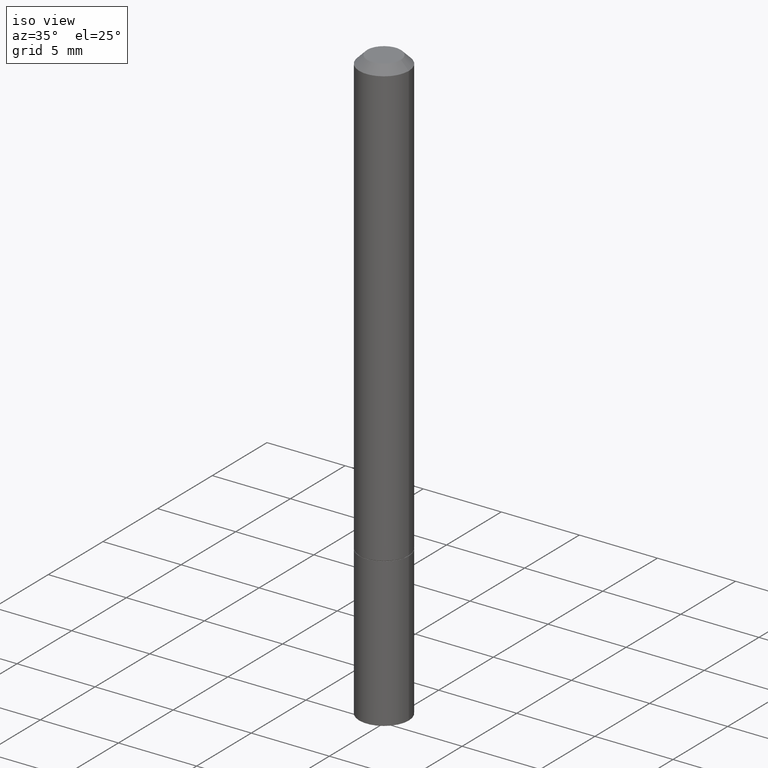
[diagram: clean part render]
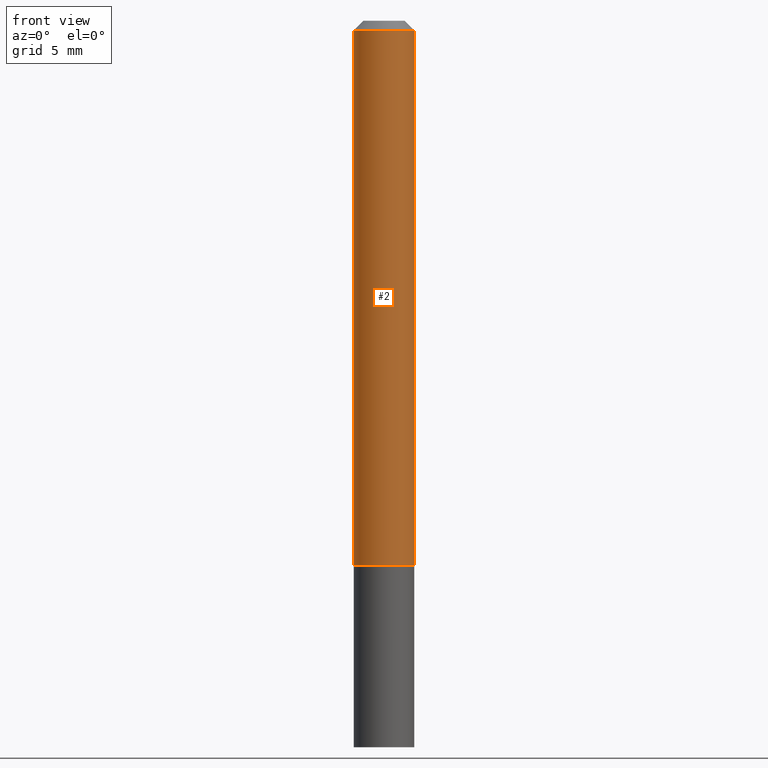
[diagram: tour spotlight — one face highlighted and labeled with its STEP entity id]
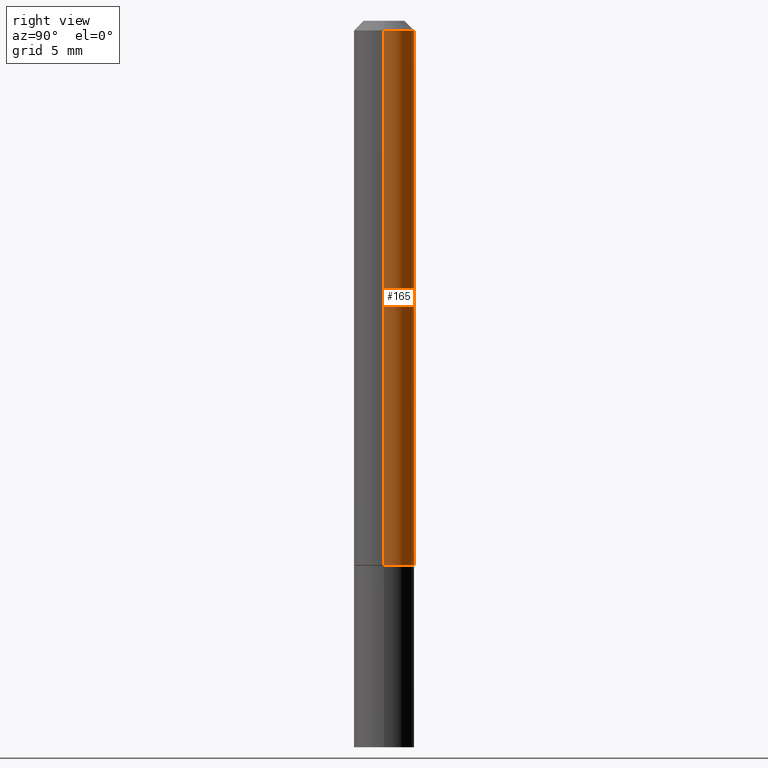
[diagram: tour spotlight — one face highlighted and labeled with its STEP entity id]
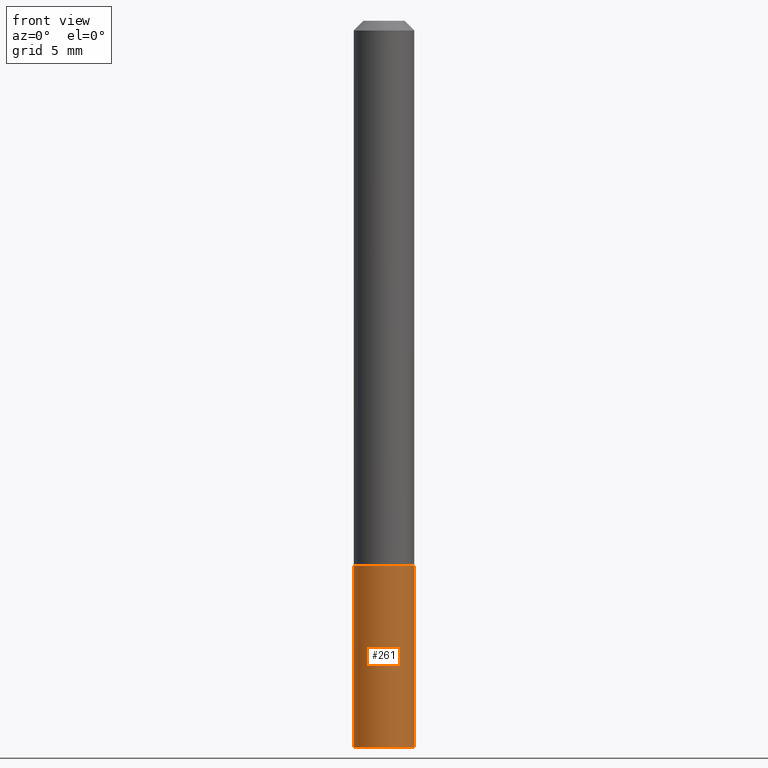
[diagram: tour spotlight — one face highlighted and labeled with its STEP entity id]
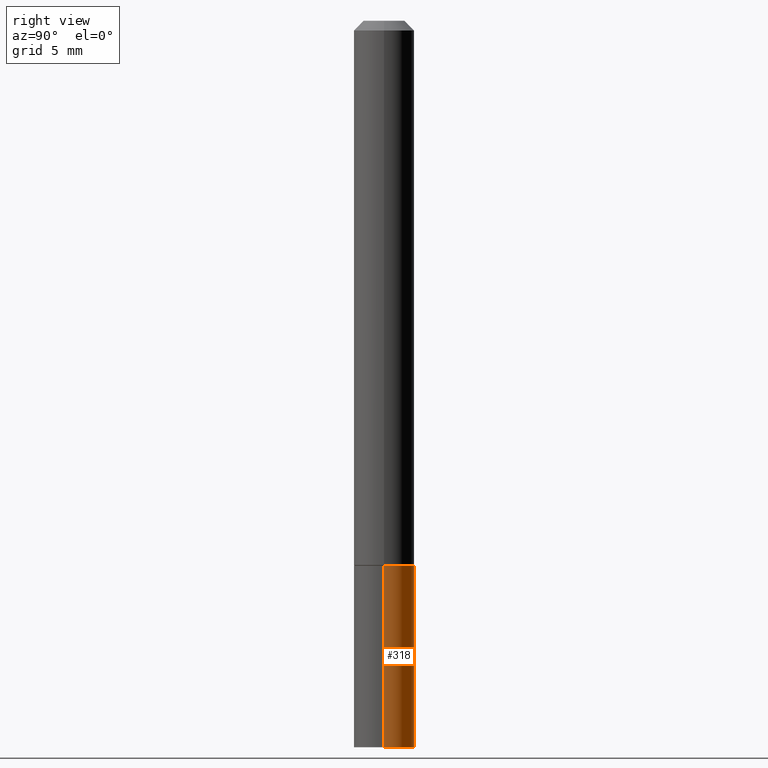
[diagram: tour spotlight — one face highlighted and labeled with its STEP entity id]
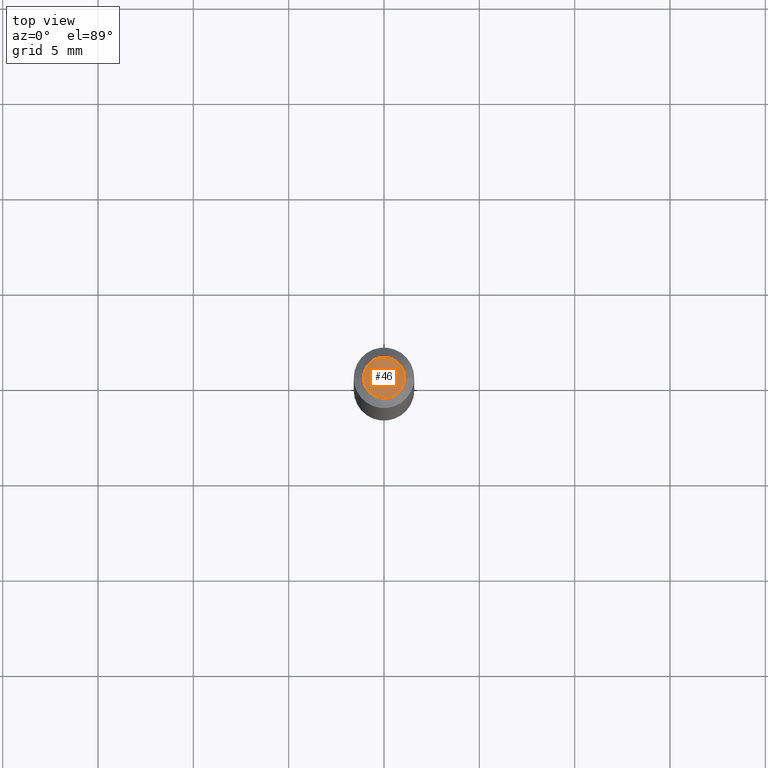
[diagram: tour spotlight — one face highlighted and labeled with its STEP entity id]
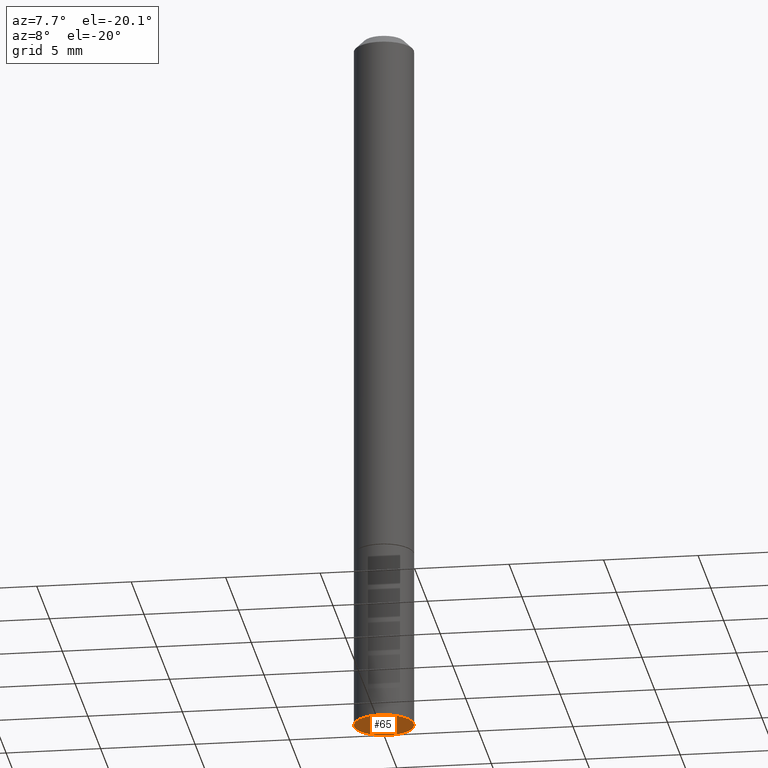
[diagram: tour spotlight — one face highlighted and labeled with its STEP entity id]
A machine part: a face-by-face anatomy tour. The part has 12 B-rep faces; the first image is the clean iso view, then the 6 largest visible faces are spotlighted one at a time (largest first), each with its STEP entity span.

Face 1 — front view, entity #2. In plain terms, the highlighted cylindrical surface (edge-blend (fillet) strip) has radius 1.5875 mm, axis along (-0, 0, 1).
Definition (entity closure, byte-faithful):
#2 = ADVANCED_FACE ( 'NONE', ( #312 ), #80, .T. ) ;
#3 = ORIENTED_EDGE ( 'NONE', *, *, #122, .T. ) ;
#14 = DIRECTION ( 'NONE',  ( 1.000000000000000000, -6.982962677686269077E-15, 0.000000000000000000 ) ) ;
#36 = LINE ( 'NONE', #176, #358 ) ;
#37 = CARTESIAN_POINT ( 'NONE',  ( 0.06250000000000001388, -4.360860192215086309E-15, -1.123999999999999888 ) ) ;
#41 = DIRECTION ( 'NONE',  ( -2.445468806185136597E-29, 3.491481338843145583E-15, 1.000000000000000000 ) ) ;
#43 = EDGE_LOOP ( 'NONE', ( #275, #357, #3, #337 ) ) ;
#56 = CARTESIAN_POINT ( 'NONE',  ( 0.000000000000000000, 0.000000000000000000, 0.000000000000000000 ) ) ;
#69 = EDGE_CURVE ( 'NONE', #303, #181, #81, .T. ) ;
#80 = CYLINDRICAL_SURFACE ( 'NONE', #307, 0.06249999999999995143 ) ;
#81 = CIRCLE ( 'NONE', #233, 0.06250000000000001388 ) ;
#89 = CARTESIAN_POINT ( 'NONE',  ( 4.890937612370294178E-31, -6.982962677686321191E-17, -0.02000000000000008715 ) ) ;
#103 = EDGE_CURVE ( 'NONE', #245, #325, #217, .T. ) ;
#122 = EDGE_CURVE ( 'NONE', #181, #325, #342, .T. ) ;
#126 = DIRECTION ( 'NONE',  ( 1.000000000000000000, -6.982962677686266711E-15, 0.000000000000000000 ) ) ;
#128 = CARTESIAN_POINT ( 'NONE',  ( 0.06249999999999988204, -4.986107516375831334E-16, -0.02000000000000008715 ) ) ;
#142 = CARTESIAN_POINT ( 'NONE',  ( 2.748706938152093068E-29, -3.924425024859694639E-15, -1.123999999999999888 ) ) ;
#166 = DIRECTION ( 'NONE',  ( -2.445468806185136597E-29, 3.491481338843145583E-15, 1.000000000000000000 ) ) ;
#176 = CARTESIAN_POINT ( 'NONE',  ( -0.06249999999999995143, 4.440892098500622710E-16, -3.074334431409313661E-30 ) ) ;
#181 = VERTEX_POINT ( 'NONE', #37 ) ;
#217 = CIRCLE ( 'NONE', #269, 0.06249999999999988204 ) ;
#225 = DIRECTION ( 'NONE',  ( -2.445468806185136877E-29, 3.491481338843145188E-15, 1.000000000000000000 ) ) ;
#227 = DIRECTION ( 'NONE',  ( -2.445468806185136877E-29, 3.491481338843145188E-15, 1.000000000000000000 ) ) ;
#233 = AXIS2_PLACEMENT_3D ( 'NONE', #142, #263, #14 ) ;
#245 = VERTEX_POINT ( 'NONE', #258 ) ;
#253 = DIRECTION ( 'NONE',  ( 1.000000000000000000, -6.982962677686266711E-15, 4.876176775795935793E-29 ) ) ;
#257 = CARTESIAN_POINT ( 'NONE',  ( -0.06250000000000001388, -1.553038115968214380E-15, -1.123999999999999888 ) ) ;
#258 = CARTESIAN_POINT ( 'NONE',  ( -0.06249999999999988204, 3.666055405785276317E-16, -0.02000000000000008715 ) ) ;
#263 = DIRECTION ( 'NONE',  ( -2.445468806185136597E-29, 3.491481338843145583E-15, 1.000000000000000000 ) ) ;
#269 = AXIS2_PLACEMENT_3D ( 'NONE', #89, #41, #126 ) ;
#275 = ORIENTED_EDGE ( 'NONE', *, *, #343, .F. ) ;
#281 = VECTOR ( 'NONE', #225, 39.37007874015748143 ) ;
#303 = VERTEX_POINT ( 'NONE', #257 ) ;
#307 = AXIS2_PLACEMENT_3D ( 'NONE', #56, #166, #253 ) ;
#312 = FACE_OUTER_BOUND ( 'NONE', #43, .T. ) ;
#321 = CARTESIAN_POINT ( 'NONE',  ( 0.06249999999999995143, -4.364351673553913243E-16, 3.047610484872457418E-30 ) ) ;
#325 = VERTEX_POINT ( 'NONE', #128 ) ;
#337 = ORIENTED_EDGE ( 'NONE', *, *, #103, .F. ) ;
#342 = LINE ( 'NONE', #321, #281 ) ;
#343 = EDGE_CURVE ( 'NONE', #303, #245, #36, .T. ) ;
#357 = ORIENTED_EDGE ( 'NONE', *, *, #69, .T. ) ;
#358 = VECTOR ( 'NONE', #227, 39.37007874015748143 ) ;

Face 2 — right view, entity #165. In plain terms, the highlighted cylindrical surface (edge-blend (fillet) strip) has radius 1.5875 mm, axis along (-0, 0, 1).
Definition (entity closure, byte-faithful):
#10 = AXIS2_PLACEMENT_3D ( 'NONE', #187, #158, #134 ) ;
#16 = DIRECTION ( 'NONE',  ( -2.445468806185136597E-29, 3.491481338843145583E-15, 1.000000000000000000 ) ) ;
#19 = EDGE_CURVE ( 'NONE', #325, #245, #360, .T. ) ;
#36 = LINE ( 'NONE', #176, #358 ) ;
#37 = CARTESIAN_POINT ( 'NONE',  ( 0.06250000000000001388, -4.360860192215086309E-15, -1.123999999999999888 ) ) ;
#39 = CARTESIAN_POINT ( 'NONE',  ( 0.000000000000000000, 0.000000000000000000, 0.000000000000000000 ) ) ;
#47 = EDGE_LOOP ( 'NONE', ( #106, #113, #73, #102 ) ) ;
#52 = CIRCLE ( 'NONE', #289, 0.06250000000000001388 ) ;
#59 = CYLINDRICAL_SURFACE ( 'NONE', #301, 0.06249999999999995143 ) ;
#66 = DIRECTION ( 'NONE',  ( -2.445468806185136597E-29, 3.491481338843145583E-15, 1.000000000000000000 ) ) ;
#73 = ORIENTED_EDGE ( 'NONE', *, *, #19, .F. ) ;
#102 = ORIENTED_EDGE ( 'NONE', *, *, #122, .F. ) ;
#106 = ORIENTED_EDGE ( 'NONE', *, *, #136, .T. ) ;
#113 = ORIENTED_EDGE ( 'NONE', *, *, #343, .T. ) ;
#122 = EDGE_CURVE ( 'NONE', #181, #325, #342, .T. ) ;
#128 = CARTESIAN_POINT ( 'NONE',  ( 0.06249999999999988204, -4.986107516375831334E-16, -0.02000000000000008715 ) ) ;
#134 = DIRECTION ( 'NONE',  ( 1.000000000000000000, -6.982962677686266711E-15, 0.000000000000000000 ) ) ;
#136 = EDGE_CURVE ( 'NONE', #181, #303, #52, .T. ) ;
#150 = DIRECTION ( 'NONE',  ( 1.000000000000000000, -6.982962677686269077E-15, 0.000000000000000000 ) ) ;
#158 = DIRECTION ( 'NONE',  ( -2.445468806185136597E-29, 3.491481338843145583E-15, 1.000000000000000000 ) ) ;
#165 = ADVANCED_FACE ( 'NONE', ( #174 ), #59, .T. ) ;
#174 = FACE_OUTER_BOUND ( 'NONE', #47, .T. ) ;
#175 = DIRECTION ( 'NONE',  ( 1.000000000000000000, -6.982962677686266711E-15, 4.876176775795935793E-29 ) ) ;
#176 = CARTESIAN_POINT ( 'NONE',  ( -0.06249999999999995143, 4.440892098500622710E-16, -3.074334431409313661E-30 ) ) ;
#181 = VERTEX_POINT ( 'NONE', #37 ) ;
#187 = CARTESIAN_POINT ( 'NONE',  ( 4.890937612370294178E-31, -6.982962677686321191E-17, -0.02000000000000008715 ) ) ;
#225 = DIRECTION ( 'NONE',  ( -2.445468806185136877E-29, 3.491481338843145188E-15, 1.000000000000000000 ) ) ;
#227 = DIRECTION ( 'NONE',  ( -2.445468806185136877E-29, 3.491481338843145188E-15, 1.000000000000000000 ) ) ;
#245 = VERTEX_POINT ( 'NONE', #258 ) ;
#257 = CARTESIAN_POINT ( 'NONE',  ( -0.06250000000000001388, -1.553038115968214380E-15, -1.123999999999999888 ) ) ;
#258 = CARTESIAN_POINT ( 'NONE',  ( -0.06249999999999988204, 3.666055405785276317E-16, -0.02000000000000008715 ) ) ;
#281 = VECTOR ( 'NONE', #225, 39.37007874015748143 ) ;
#287 = CARTESIAN_POINT ( 'NONE',  ( 2.748706938152093068E-29, -3.924425024859694639E-15, -1.123999999999999888 ) ) ;
#289 = AXIS2_PLACEMENT_3D ( 'NONE', #287, #16, #150 ) ;
#301 = AXIS2_PLACEMENT_3D ( 'NONE', #39, #66, #175 ) ;
#303 = VERTEX_POINT ( 'NONE', #257 ) ;
#321 = CARTESIAN_POINT ( 'NONE',  ( 0.06249999999999995143, -4.364351673553913243E-16, 3.047610484872457418E-30 ) ) ;
#325 = VERTEX_POINT ( 'NONE', #128 ) ;
#342 = LINE ( 'NONE', #321, #281 ) ;
#343 = EDGE_CURVE ( 'NONE', #303, #245, #36, .T. ) ;
#358 = VECTOR ( 'NONE', #227, 39.37007874015748143 ) ;
#360 = CIRCLE ( 'NONE', #10, 0.06249999999999988204 ) ;

Face 3 — front view, entity #261. In plain terms, the highlighted cylindrical surface (edge-blend (fillet) strip) has radius 1.5875 mm, axis along (-0, 0, 1).
Definition (entity closure, byte-faithful):
#18 = DIRECTION ( 'NONE',  ( 1.000000000000000000, -6.982962677686269077E-15, 0.000000000000000000 ) ) ;
#28 = ORIENTED_EDGE ( 'NONE', *, *, #107, .T. ) ;
#58 = CIRCLE ( 'NONE', #95, 0.06250000000000001388 ) ;
#61 = FACE_OUTER_BOUND ( 'NONE', #196, .T. ) ;
#64 = LINE ( 'NONE', #314, #135 ) ;
#85 = DIRECTION ( 'NONE',  ( 1.000000000000000000, -6.982962677686261189E-15, 0.000000000000000000 ) ) ;
#93 = AXIS2_PLACEMENT_3D ( 'NONE', #229, #204, #85 ) ;
#95 = AXIS2_PLACEMENT_3D ( 'NONE', #127, #208, #18 ) ;
#97 = DIRECTION ( 'NONE',  ( 1.000000000000000000, -6.982962677686267499E-15, 4.876176775795935793E-29 ) ) ;
#107 = EDGE_CURVE ( 'NONE', #308, #366, #249, .T. ) ;
#127 = CARTESIAN_POINT ( 'NONE',  ( 2.751152406958278111E-29, -3.927916506198538435E-15, -1.124999999999999778 ) ) ;
#130 = AXIS2_PLACEMENT_3D ( 'NONE', #235, #352, #97 ) ;
#132 = EDGE_CURVE ( 'NONE', #308, #242, #64, .T. ) ;
#135 = VECTOR ( 'NONE', #197, 39.37007874015748143 ) ;
#139 = ORIENTED_EDGE ( 'NONE', *, *, #145, .T. ) ;
#145 = EDGE_CURVE ( 'NONE', #366, #161, #172, .T. ) ;
#148 = CYLINDRICAL_SURFACE ( 'NONE', #130, 0.06250000000000001388 ) ;
#161 = VERTEX_POINT ( 'NONE', #201 ) ;
#163 = ORIENTED_EDGE ( 'NONE', *, *, #271, .F. ) ;
#172 = LINE ( 'NONE', #231, #205 ) ;
#196 = EDGE_LOOP ( 'NONE', ( #338, #28, #139, #163 ) ) ;
#197 = DIRECTION ( 'NONE',  ( -2.445468806185136877E-29, 3.491481338843145188E-15, 1.000000000000000000 ) ) ;
#201 = CARTESIAN_POINT ( 'NONE',  ( 0.06250000000000001388, -4.364351673553930105E-15, -1.124999999999999778 ) ) ;
#203 = CARTESIAN_POINT ( 'NONE',  ( -0.06250000000000001388, -4.138480047381564901E-15, -1.124999999999999778 ) ) ;
#204 = DIRECTION ( 'NONE',  ( -2.445468806185136597E-29, 3.491481338843145583E-15, 1.000000000000000000 ) ) ;
#205 = VECTOR ( 'NONE', #349, 39.37007874015748143 ) ;
#208 = DIRECTION ( 'NONE',  ( -2.445468806185136597E-29, 3.491481338843145583E-15, 1.000000000000000000 ) ) ;
#229 = CARTESIAN_POINT ( 'NONE',  ( 3.668203209277704335E-29, -5.237222008264717388E-15, -1.499999999999999778 ) ) ;
#231 = CARTESIAN_POINT ( 'NONE',  ( 0.06250000000000001388, -4.364351673553918173E-16, 3.047610484872460571E-30 ) ) ;
#235 = CARTESIAN_POINT ( 'NONE',  ( 0.000000000000000000, 0.000000000000000000, 0.000000000000000000 ) ) ;
#242 = VERTEX_POINT ( 'NONE', #203 ) ;
#249 = CIRCLE ( 'NONE', #93, 0.06250000000000001388 ) ;
#261 = ADVANCED_FACE ( 'NONE', ( #61 ), #148, .T. ) ;
#271 = EDGE_CURVE ( 'NONE', #242, #161, #58, .T. ) ;
#308 = VERTEX_POINT ( 'NONE', #324 ) ;
#314 = CARTESIAN_POINT ( 'NONE',  ( -0.06250000000000001388, 4.440892098500627148E-16, -3.074334431409317165E-30 ) ) ;
#316 = CARTESIAN_POINT ( 'NONE',  ( 0.06250000000000001388, -5.673657175620109057E-15, -1.499999999999999778 ) ) ;
#324 = CARTESIAN_POINT ( 'NONE',  ( -0.06250000000000001388, -4.138480047381564901E-15, -1.499999999999999778 ) ) ;
#338 = ORIENTED_EDGE ( 'NONE', *, *, #132, .F. ) ;
#349 = DIRECTION ( 'NONE',  ( -2.445468806185136877E-29, 3.491481338843145188E-15, 1.000000000000000000 ) ) ;
#352 = DIRECTION ( 'NONE',  ( -2.445468806185136597E-29, 3.491481338843145583E-15, 1.000000000000000000 ) ) ;
#366 = VERTEX_POINT ( 'NONE', #316 ) ;

Face 4 — right view, entity #318. In plain terms, the highlighted cylindrical surface (edge-blend (fillet) strip) has radius 1.5875 mm, axis along (-0, 0, 1).
Definition (entity closure, byte-faithful):
#25 = CIRCLE ( 'NONE', #234, 0.06250000000000001388 ) ;
#26 = ORIENTED_EDGE ( 'NONE', *, *, #359, .F. ) ;
#33 = CYLINDRICAL_SURFACE ( 'NONE', #218, 0.06250000000000001388 ) ;
#62 = DIRECTION ( 'NONE',  ( 1.000000000000000000, -6.982962677686267499E-15, 4.876176775795935793E-29 ) ) ;
#64 = LINE ( 'NONE', #314, #135 ) ;
#87 = DIRECTION ( 'NONE',  ( -2.445468806185136597E-29, 3.491481338843145583E-15, 1.000000000000000000 ) ) ;
#90 = DIRECTION ( 'NONE',  ( 1.000000000000000000, -6.982962677686269077E-15, 0.000000000000000000 ) ) ;
#94 = DIRECTION ( 'NONE',  ( -2.445468806185136597E-29, 3.491481338843145583E-15, 1.000000000000000000 ) ) ;
#110 = EDGE_LOOP ( 'NONE', ( #183, #238, #26, #298 ) ) ;
#120 = CARTESIAN_POINT ( 'NONE',  ( 2.751152406958278111E-29, -3.927916506198538435E-15, -1.124999999999999778 ) ) ;
#132 = EDGE_CURVE ( 'NONE', #308, #242, #64, .T. ) ;
#135 = VECTOR ( 'NONE', #197, 39.37007874015748143 ) ;
#140 = CIRCLE ( 'NONE', #240, 0.06250000000000001388 ) ;
#145 = EDGE_CURVE ( 'NONE', #366, #161, #172, .T. ) ;
#147 = FACE_OUTER_BOUND ( 'NONE', #110, .T. ) ;
#151 = DIRECTION ( 'NONE',  ( -2.445468806185136597E-29, 3.491481338843145583E-15, 1.000000000000000000 ) ) ;
#161 = VERTEX_POINT ( 'NONE', #201 ) ;
#172 = LINE ( 'NONE', #231, #205 ) ;
#183 = ORIENTED_EDGE ( 'NONE', *, *, #294, .T. ) ;
#197 = DIRECTION ( 'NONE',  ( -2.445468806185136877E-29, 3.491481338843145188E-15, 1.000000000000000000 ) ) ;
#201 = CARTESIAN_POINT ( 'NONE',  ( 0.06250000000000001388, -4.364351673553930105E-15, -1.124999999999999778 ) ) ;
#203 = CARTESIAN_POINT ( 'NONE',  ( -0.06250000000000001388, -4.138480047381564901E-15, -1.124999999999999778 ) ) ;
#205 = VECTOR ( 'NONE', #349, 39.37007874015748143 ) ;
#218 = AXIS2_PLACEMENT_3D ( 'NONE', #267, #151, #62 ) ;
#224 = DIRECTION ( 'NONE',  ( 1.000000000000000000, -6.982962677686261189E-15, 0.000000000000000000 ) ) ;
#231 = CARTESIAN_POINT ( 'NONE',  ( 0.06250000000000001388, -4.364351673553918173E-16, 3.047610484872460571E-30 ) ) ;
#234 = AXIS2_PLACEMENT_3D ( 'NONE', #286, #87, #224 ) ;
#238 = ORIENTED_EDGE ( 'NONE', *, *, #132, .T. ) ;
#240 = AXIS2_PLACEMENT_3D ( 'NONE', #120, #94, #90 ) ;
#242 = VERTEX_POINT ( 'NONE', #203 ) ;
#267 = CARTESIAN_POINT ( 'NONE',  ( 0.000000000000000000, 0.000000000000000000, 0.000000000000000000 ) ) ;
#286 = CARTESIAN_POINT ( 'NONE',  ( 3.668203209277704335E-29, -5.237222008264717388E-15, -1.499999999999999778 ) ) ;
#294 = EDGE_CURVE ( 'NONE', #366, #308, #25, .T. ) ;
#298 = ORIENTED_EDGE ( 'NONE', *, *, #145, .F. ) ;
#308 = VERTEX_POINT ( 'NONE', #324 ) ;
#314 = CARTESIAN_POINT ( 'NONE',  ( -0.06250000000000001388, 4.440892098500627148E-16, -3.074334431409317165E-30 ) ) ;
#316 = CARTESIAN_POINT ( 'NONE',  ( 0.06250000000000001388, -5.673657175620109057E-15, -1.499999999999999778 ) ) ;
#318 = ADVANCED_FACE ( 'NONE', ( #147 ), #33, .T. ) ;
#324 = CARTESIAN_POINT ( 'NONE',  ( -0.06250000000000001388, -4.138480047381564901E-15, -1.499999999999999778 ) ) ;
#349 = DIRECTION ( 'NONE',  ( -2.445468806185136877E-29, 3.491481338843145188E-15, 1.000000000000000000 ) ) ;
#359 = EDGE_CURVE ( 'NONE', #161, #242, #140, .T. ) ;
#366 = VERTEX_POINT ( 'NONE', #316 ) ;

Face 5 — top view, entity #46. In plain terms, the highlighted planar face has unit normal (0, -0, -1).
Definition (entity closure, byte-faithful):
#1 = AXIS2_PLACEMENT_3D ( 'NONE', #119, #292, #152 ) ;
#5 = EDGE_LOOP ( 'NONE', ( #194, #30 ) ) ;
#8 = AXIS2_PLACEMENT_3D ( 'NONE', #190, #306, #49 ) ;
#9 = DIRECTION ( 'NONE',  ( -2.445468806185136597E-29, 3.491481338843145583E-15, 1.000000000000000000 ) ) ;
#30 = ORIENTED_EDGE ( 'NONE', *, *, #189, .T. ) ;
#46 = ADVANCED_FACE ( 'NONE', ( #333 ), #78, .F. ) ;
#49 = DIRECTION ( 'NONE',  ( -1.000000000000000000, 6.982962677686265922E-15, -4.876176775795935793E-29 ) ) ;
#78 = PLANE ( 'NONE',  #8 ) ;
#105 = AXIS2_PLACEMENT_3D ( 'NONE', #344, #9, #173 ) ;
#119 = CARTESIAN_POINT ( 'NONE',  ( 1.357006838635785746E-45, -1.937446121494581442E-31, -5.549066237130534971E-17 ) ) ;
#121 = CARTESIAN_POINT ( 'NONE',  ( 0.04249999999999988509, -3.950909582714363501E-16, -5.549066237130292766E-17 ) ) ;
#137 = VERTEX_POINT ( 'NONE', #121 ) ;
#152 = DIRECTION ( 'NONE',  ( 1.000000000000000000, -6.982962677686267499E-15, 4.870577812114097619E-29 ) ) ;
#167 = CIRCLE ( 'NONE', #1, 0.04249999999999988509 ) ;
#173 = DIRECTION ( 'NONE',  ( 1.000000000000000000, -6.982962677686267499E-15, 4.870577812114097619E-29 ) ) ;
#189 = EDGE_CURVE ( 'NONE', #137, #216, #167, .T. ) ;
#190 = CARTESIAN_POINT ( 'NONE',  ( 2.967759138016655168E-16, 0.04249999999999988509, -1.761332880864859756E-16 ) ) ;
#191 = CIRCLE ( 'NONE', #105, 0.04249999999999988509 ) ;
#194 = ORIENTED_EDGE ( 'NONE', *, *, #353, .T. ) ;
#216 = VERTEX_POINT ( 'NONE', #228 ) ;
#228 = CARTESIAN_POINT ( 'NONE',  ( -0.04249999999999988509, 3.316907271900965249E-16, -5.549066237130754373E-17 ) ) ;
#292 = DIRECTION ( 'NONE',  ( -2.445468806185136597E-29, 3.491481338843145583E-15, 1.000000000000000000 ) ) ;
#306 = DIRECTION ( 'NONE',  ( 2.438088387897960049E-29, -3.491481338843145188E-15, -1.000000000000000000 ) ) ;
#333 = FACE_OUTER_BOUND ( 'NONE', #5, .T. ) ;
#344 = CARTESIAN_POINT ( 'NONE',  ( 1.357006838635785746E-45, -1.937446121494581442E-31, -5.549066237130534971E-17 ) ) ;
#353 = EDGE_CURVE ( 'NONE', #216, #137, #191, .T. ) ;

Face 6 — auxiliary view, entity #65. In plain terms, the highlighted planar face has unit normal (0, -0, -1).
Definition (entity closure, byte-faithful):
#6 = DIRECTION ( 'NONE',  ( 2.438088387897960049E-29, -3.491481338843145188E-15, -1.000000000000000000 ) ) ;
#25 = CIRCLE ( 'NONE', #234, 0.06250000000000001388 ) ;
#53 = ORIENTED_EDGE ( 'NONE', *, *, #107, .F. ) ;
#65 = ADVANCED_FACE ( 'NONE', ( #277 ), #248, .T. ) ;
#83 = ORIENTED_EDGE ( 'NONE', *, *, #294, .F. ) ;
#85 = DIRECTION ( 'NONE',  ( 1.000000000000000000, -6.982962677686261189E-15, 0.000000000000000000 ) ) ;
#87 = DIRECTION ( 'NONE',  ( -2.445468806185136597E-29, 3.491481338843145583E-15, 1.000000000000000000 ) ) ;
#93 = AXIS2_PLACEMENT_3D ( 'NONE', #229, #204, #85 ) ;
#107 = EDGE_CURVE ( 'NONE', #308, #366, #249, .T. ) ;
#204 = DIRECTION ( 'NONE',  ( -2.445468806185136597E-29, 3.491481338843145583E-15, 1.000000000000000000 ) ) ;
#213 = EDGE_LOOP ( 'NONE', ( #83, #53 ) ) ;
#224 = DIRECTION ( 'NONE',  ( 1.000000000000000000, -6.982962677686261189E-15, 0.000000000000000000 ) ) ;
#229 = CARTESIAN_POINT ( 'NONE',  ( 3.668203209277704335E-29, -5.237222008264717388E-15, -1.499999999999999778 ) ) ;
#234 = AXIS2_PLACEMENT_3D ( 'NONE', #286, #87, #224 ) ;
#239 = AXIS2_PLACEMENT_3D ( 'NONE', #260, #6, #291 ) ;
#248 = PLANE ( 'NONE',  #239 ) ;
#249 = CIRCLE ( 'NONE', #93, 0.06250000000000001388 ) ;
#260 = CARTESIAN_POINT ( 'NONE',  ( 4.364351673554284500E-16, 0.06249999999999478195, -1.500000000000000222 ) ) ;
#277 = FACE_OUTER_BOUND ( 'NONE', #213, .T. ) ;
#286 = CARTESIAN_POINT ( 'NONE',  ( 3.668203209277704335E-29, -5.237222008264717388E-15, -1.499999999999999778 ) ) ;
#291 = DIRECTION ( 'NONE',  ( -1.000000000000000000, 6.982962677686265922E-15, -4.876176775795935793E-29 ) ) ;
#294 = EDGE_CURVE ( 'NONE', #366, #308, #25, .T. ) ;
#308 = VERTEX_POINT ( 'NONE', #324 ) ;
#316 = CARTESIAN_POINT ( 'NONE',  ( 0.06250000000000001388, -5.673657175620109057E-15, -1.499999999999999778 ) ) ;
#324 = CARTESIAN_POINT ( 'NONE',  ( -0.06250000000000001388, -4.138480047381564901E-15, -1.499999999999999778 ) ) ;
#366 = VERTEX_POINT ( 'NONE', #316 ) ;